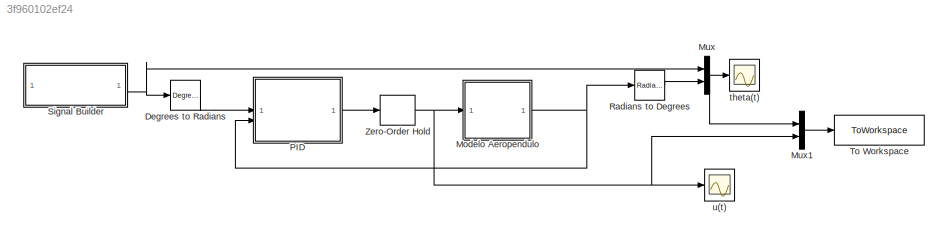
MODEL mdl_3f960102ef24
KIND model
CONFIG AbsTol = auto
CONFIG EnableMultiTasking = off
CONFIG FixedStep = 0.001
CONFIG InitFcn = alpha = 20.70;\nbeta =  1.27;\ngamma = 0.53;
CONFIG MaxStep = auto
CONFIG MinStep = auto
CONFIG RelTol = 1e-3
CONFIG SampleTimeConstraint = Unconstrained
CONFIG SolverName = ode4
CONFIG StartTime = 0.0
CONFIG StopTime = 80
BLOCK [Reference] Degrees to Radians  REF=simulink_extras/Transformations/Degrees to
Radians
  SourceBlock = simulink_extras/Transformations/Degrees to\nRadians
  SourceType = DegreesToRadians
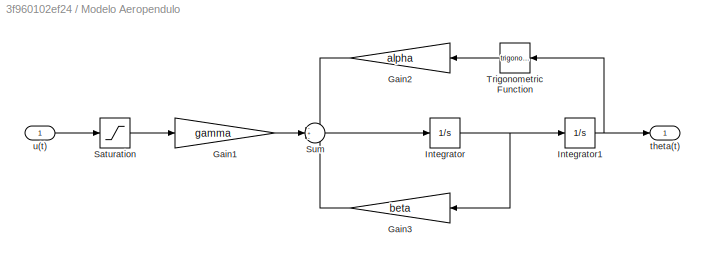
BLOCK [SubSystem] Modelo Aeropendulo
BLOCK [Gain] Modelo Aeropendulo/Gain1
  Gain = gamma
BLOCK [Gain] Modelo Aeropendulo/Gain2
  Gain = alpha
  NameLocation = top
BLOCK [Gain] Modelo Aeropendulo/Gain3
  Gain = beta
  NameLocation = top
BLOCK [Integrator] Modelo Aeropendulo/Integrator
BLOCK [Integrator] Modelo Aeropendulo/Integrator1
BLOCK [Saturate] Modelo Aeropendulo/Saturation
  LowerLimit = 0
  UpperLimit = 100
BLOCK [Sum] Modelo Aeropendulo/Sum
  Inputs = -+-
BLOCK [Trigonometry] Modelo Aeropendulo/Trigonometric Function
  NameLocation = top
BLOCK [Outport] Modelo Aeropendulo/theta(t)
BLOCK [Inport] Modelo Aeropendulo/u(t)
BLOCK [Mux] Mux
  DisplayOption = bar
  Inputs = 2
BLOCK [Mux] Mux1
  DisplayOption = bar
  Inputs = 2
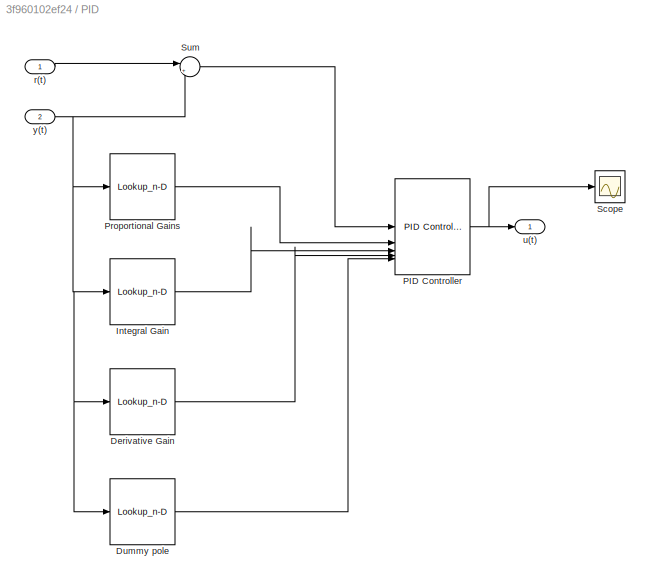
BLOCK [SubSystem] PID
BLOCK [Lookup_n-D] PID/Derivative Gain
  BreakpointsForDimension1 = deg2rad([15 37.5 55 70 85])
  BreakpointsForDimension2 = [-5:5]
  BreakpointsForDimension3 = [-5:5]
  BreakpointsForDimension4 = [-5:5]
  InputPortMap = u0
  InternalRulePriority = Speed
  NumberOfTableDimensions = 1
  RndMeth = Simplest
  Table = [Kd_pid1 Kd_pid2 Kd_pid3 Kd_pid4 Kd_pid5]
BLOCK [Lookup_n-D] PID/Dummy pole
  BreakpointsForDimension1 = deg2rad([15 37.5 55 70 85])
  BreakpointsForDimension2 = [-5:5]
  BreakpointsForDimension3 = [-5:5]
  BreakpointsForDimension4 = [-5:5]
  InputPortMap = u0
  InternalRulePriority = Speed
  NumberOfTableDimensions = 1
  RndMeth = Simplest
  Table = [N_pid1 N_pid2 N_pid3 N_pid4 N_pid5]
BLOCK [Lookup_n-D] PID/Integral Gain
  BreakpointsForDimension1 = deg2rad([15 37.5 55 70 85])
  BreakpointsForDimension2 = [-5:5]
  BreakpointsForDimension3 = [-5:5]
  BreakpointsForDimension4 = [-5:5]
  InputPortMap = u0
  InternalRulePriority = Speed
  NumberOfTableDimensions = 1
  RndMeth = Simplest
  Table = [Ki_pid1 Ki_pid2 Ki_pid3 Ki_pid4 Ki_pid5]
BLOCK [Reference] PID/PID Controller  REF=slpidlib/PID Controller
  SourceBlock = slpidlib/PID Controller
  SourceType = PID 1dof
BLOCK [Lookup_n-D] PID/Proportional Gains
  BreakpointsForDimension1 = deg2rad([15 37.5 55 70 85])
  BreakpointsForDimension2 = [-5:5]
  BreakpointsForDimension3 = [-5:5]
  BreakpointsForDimension4 = [-5:5]
  InputPortMap = u0
  InternalRulePriority = Speed
  NumberOfTableDimensions = 1
  RndMeth = Simplest
  Table = [Kp_pid1 Kp_pid2 Kp_pid3 Kp_pid4 Kp_pid5]
BLOCK [Scope] PID/Scope
  Floating = off
  NumInputPorts = 1
  ScopeSpecificationString = Simulink.scopes.TimeScopeBlockCfg('CurrentConfiguration', extmgr.ConfigurationSet(extmgr.Configuration('Core','General UI',true),extmgr.Configuration('Core','Source UI',true),extmgr.Configuration('Sources','WiredSimulink',true,'DataLoggingVariableName','ScopeData2'),extmgr.Configuration('Visuals','Time Domain',true,'SerializedDisplays',{struct('MinYLimReal','-6.17205','MaxYLimReal','55.54768','YLa...<+1410ch>
BLOCK [Sum] PID/Sum
  Inputs = |+-
BLOCK [Inport] PID/r(t)
BLOCK [Outport] PID/u(t)
BLOCK [Inport] PID/y(t)
  Port = 2
BLOCK [Reference] Radians to Degrees  REF=simulink_extras/Transformations/Radians
to Degrees
  SourceBlock = simulink_extras/Transformations/Radians\nto Degrees
  SourceType = RadiansToDegrees
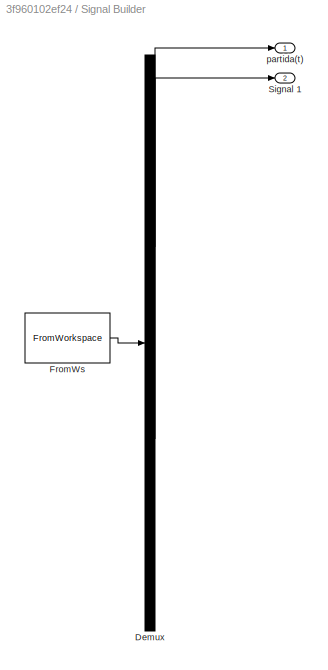
BLOCK [SubSystem] Signal Builder
  ClipboardFcn = sigbuilder_block('clipboard');
  CloseFcn = sigbuilder_block('close');
  ContinueFcn = sigbuilder_block('continue');
  CopyFcn = sigbuilder_block('copy');
  DeleteFcn = sigbuilder_block('delete');
  LoadFcn = sigbuilder_block('load',[19.8 162 1087.2 352.8 ]);
  MaskHideContents = on
  ModelCloseFcn = sigbuilder_block('modelClose');
  NameChangeFcn = sigbuilder_block('namechange');
  OpenFcn = sigbuilder_block('open',[302.25 165 1093.5 399.75 ]);
  PauseFcn = sigbuilder_block('pause');
  PreSaveFcn = sigbuilder_block('preSave');
  StartFcn = sigbuilder_block('start');
  StopFcn = sigbuilder_block('stop');
  Tag = STV Subsys
BLOCK [Demux] Signal Builder/Demux
  DisplayOption = none
  Outputs = 2
  Tag = STV Demux
BLOCK [FromWorkspace] Signal Builder/FromWs
  Tag = STV FromWs
  VariableName = tuvar
BLOCK [Outport] Signal Builder/Signal 1
  Port = 2
  Tag = STV Outport
BLOCK [Outport] Signal Builder/partida(t)
  Tag = STV Outport
BLOCK [ToWorkspace] To Workspace
  FixptAsFi = on
  MaxDataPoints = inf
  SampleTime = -1
  SaveFormat = Timeseries
  VariableName = simout
BLOCK [ZeroOrderHold] Zero-Order Hold
  SampleTime = 0.010
BLOCK [Scope] theta(t)
  Floating = off
  NumInputPorts = 1
  ScopeSpecificationString = Simulink.scopes.TimeScopeBlockCfg('CurrentConfiguration', extmgr.ConfigurationSet(extmgr.Configuration('Core','General UI',true),extmgr.Configuration('Core','Source UI',true),extmgr.Configuration('Sources','WiredSimulink',true,'DataLoggingVariableName','ScopeData1','DataLoggingSaveFormat','Array','DataLoggingDecimation','1','DataLoggingDecimateData',true),extmgr.Configuration('Visuals','Time Domai...<+1732ch>
BLOCK [Scope] u(t)
  Floating = off
  NumInputPorts = 1
  ScopeSpecificationString = Simulink.scopes.TimeScopeBlockCfg('CurrentConfiguration', extmgr.ConfigurationSet(extmgr.Configuration('Core','General UI',true),extmgr.Configuration('Core','Source UI',true),extmgr.Configuration('Sources','WiredSimulink',true,'DataLoggingSaveFormat','Array','DataLoggingDecimation','1','DataLoggingDecimateData',true),extmgr.Configuration('Visuals','Time Domain',true,'SerializedDisplays',{struct('M...<+1631ch>
LINE Degrees to Radians:1 -> PID:1
LINE Modelo Aeropendulo/Gain1:1 -> Modelo Aeropendulo/Sum:2
LINE Modelo Aeropendulo/Gain2:1 -> Modelo Aeropendulo/Sum:1
LINE Modelo Aeropendulo/Gain3:1 -> Modelo Aeropendulo/Sum:3
NET Modelo Aeropendulo/Integrator1:1 -> Modelo Aeropendulo/Trigonometric Function:1, Modelo Aeropendulo/theta(t):1
NET Modelo Aeropendulo/Integrator:1 -> Modelo Aeropendulo/Gain3:1, Modelo Aeropendulo/Integrator1:1
LINE Modelo Aeropendulo/Saturation:1 -> Modelo Aeropendulo/Gain1:1
LINE Modelo Aeropendulo/Sum:1 -> Modelo Aeropendulo/Integrator:1
LINE Modelo Aeropendulo/Trigonometric Function:1 -> Modelo Aeropendulo/Gain2:1
LINE Modelo Aeropendulo/u(t):1 -> Modelo Aeropendulo/Saturation:1
NET Modelo Aeropendulo:1 -> PID:2, Radians to Degrees:1
LINE Mux1:1 -> To Workspace:1
NET Mux:1 -> Mux1:1, theta(t):1
LINE PID/Derivative Gain:1 -> PID/PID Controller:4
LINE PID/Dummy pole:1 -> PID/PID Controller:5
LINE PID/Integral Gain:1 -> PID/PID Controller:3
NET PID/PID Controller:1 -> PID/Scope:1, PID/u(t):1
LINE PID/Proportional Gains:1 -> PID/PID Controller:2
LINE PID/Sum:1 -> PID/PID Controller:1
LINE PID/r(t):1 -> PID/Sum:1
NET PID/y(t):1 -> PID/Derivative Gain:1, PID/Dummy pole:1, PID/Integral Gain:1, PID/Proportional Gains:1, PID/Sum:2
LINE PID:1 -> Zero-Order Hold:1
LINE Radians to Degrees:1 -> Mux:2
NET Signal Builder:2 -> Degrees to Radians:1, Mux:1
NET Zero-Order Hold:1 -> Modelo Aeropendulo:1, Mux1:2, u(t):1
note: NET lines group one-source signal fan-out (src -> all destinations, sorted); 1:1 wires keep LINE
